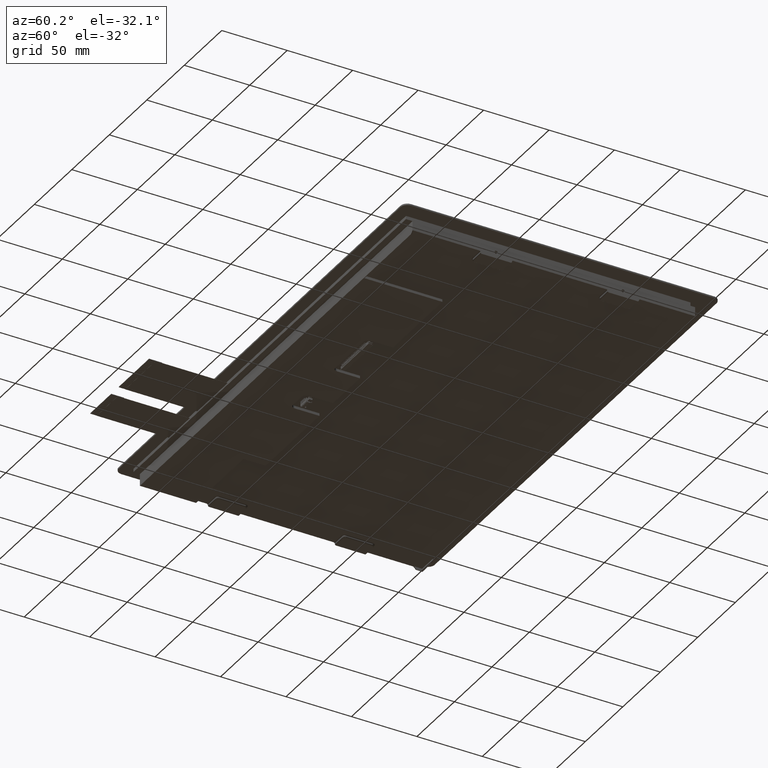
[diagram: clean part render]
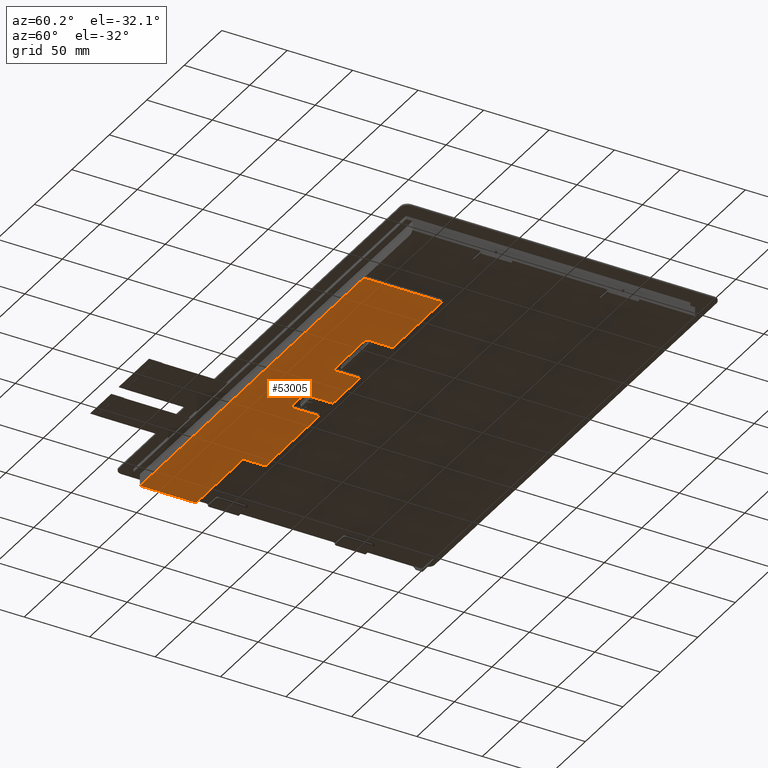
[diagram: same view with one face highlighted and labeled with its STEP entity id]
A machine part, auxiliary view. The second image highlights one B-rep face of the part: STEP entity #53005.
In plain terms, the highlighted planar face has unit normal (0, 0, -1).
Its self-contained STEP definition (entity closure, byte-faithful):
#1290=FACE_OUTER_BOUND('',#4015,.T.);
#4015=EDGE_LOOP('',(#37917,#37918,#37919,#37920,#37921,#37922,#37923,#37924,
#37925,#37926,#37927,#37928,#37929,#37930,#37931,#37932,#37933,#37934,#37935,
#37936));
#6289=CIRCLE('',#55763,3.);
#6290=CIRCLE('',#55764,3.);
#6291=CIRCLE('',#55765,3.);
#6292=CIRCLE('',#55766,3.);
#8664=LINE('',#76039,#15763);
#8756=LINE('',#76620,#15855);
#8757=LINE('',#76622,#15856);
#8758=LINE('',#76624,#15857);
#8759=LINE('',#76626,#15858);
#8760=LINE('',#76628,#15859);
#8761=LINE('',#76630,#15860);
#8762=LINE('',#76634,#15861);
#8763=LINE('',#76638,#15862);
#8764=LINE('',#76640,#15863);
#8765=LINE('',#76642,#15864);
#8766=LINE('',#76646,#15865);
#8767=LINE('',#76650,#15866);
#8768=LINE('',#76652,#15867);
#8769=LINE('',#76654,#15868);
#8770=LINE('',#76655,#15869);
#15763=VECTOR('',#61459,10.);
#15855=VECTOR('',#61665,10.);
#15856=VECTOR('',#61666,10.);
#15857=VECTOR('',#61667,10.);
#15858=VECTOR('',#61668,10.);
#15859=VECTOR('',#61669,10.);
#15860=VECTOR('',#61670,10.);
#15861=VECTOR('',#61673,10.);
#15862=VECTOR('',#61676,10.);
#15863=VECTOR('',#61677,10.);
#15864=VECTOR('',#61678,10.);
#15865=VECTOR('',#61681,10.);
#15866=VECTOR('',#61684,10.);
#15867=VECTOR('',#61685,10.);
#15868=VECTOR('',#61686,10.);
#15869=VECTOR('',#61687,10.);
#22299=VERTEX_POINT('',#76031);
#22302=VERTEX_POINT('',#76037);
#22417=VERTEX_POINT('',#76619);
#22418=VERTEX_POINT('',#76621);
#22419=VERTEX_POINT('',#76623);
#22420=VERTEX_POINT('',#76625);
#22421=VERTEX_POINT('',#76627);
#22422=VERTEX_POINT('',#76629);
#22423=VERTEX_POINT('',#76631);
#22424=VERTEX_POINT('',#76633);
#22425=VERTEX_POINT('',#76635);
#22426=VERTEX_POINT('',#76637);
#22427=VERTEX_POINT('',#76639);
#22428=VERTEX_POINT('',#76641);
#22429=VERTEX_POINT('',#76643);
#22430=VERTEX_POINT('',#76645);
#22431=VERTEX_POINT('',#76647);
#22432=VERTEX_POINT('',#76649);
#22433=VERTEX_POINT('',#76651);
#22434=VERTEX_POINT('',#76653);
#28085=EDGE_CURVE('',#22299,#22302,#8664,.T.);
#28237=EDGE_CURVE('',#22299,#22417,#8756,.T.);
#28238=EDGE_CURVE('',#22302,#22418,#8757,.T.);
#28239=EDGE_CURVE('',#22418,#22419,#8758,.T.);
#28240=EDGE_CURVE('',#22419,#22420,#8759,.T.);
#28241=EDGE_CURVE('',#22420,#22421,#8760,.T.);
#28242=EDGE_CURVE('',#22421,#22422,#8761,.T.);
#28243=EDGE_CURVE('',#22422,#22423,#6289,.T.);
#28244=EDGE_CURVE('',#22423,#22424,#8762,.T.);
#28245=EDGE_CURVE('',#22424,#22425,#6290,.T.);
#28246=EDGE_CURVE('',#22425,#22426,#8763,.T.);
#28247=EDGE_CURVE('',#22426,#22427,#8764,.T.);
#28248=EDGE_CURVE('',#22427,#22428,#8765,.T.);
#28249=EDGE_CURVE('',#22428,#22429,#6291,.T.);
#28250=EDGE_CURVE('',#22429,#22430,#8766,.T.);
#28251=EDGE_CURVE('',#22430,#22431,#6292,.T.);
#28252=EDGE_CURVE('',#22431,#22432,#8767,.T.);
#28253=EDGE_CURVE('',#22432,#22433,#8768,.T.);
#28254=EDGE_CURVE('',#22433,#22434,#8769,.T.);
#28255=EDGE_CURVE('',#22434,#22417,#8770,.T.);
#37917=ORIENTED_EDGE('',*,*,#28237,.F.);
#37918=ORIENTED_EDGE('',*,*,#28085,.T.);
#37919=ORIENTED_EDGE('',*,*,#28238,.T.);
#37920=ORIENTED_EDGE('',*,*,#28239,.T.);
#37921=ORIENTED_EDGE('',*,*,#28240,.T.);
#37922=ORIENTED_EDGE('',*,*,#28241,.T.);
#37923=ORIENTED_EDGE('',*,*,#28242,.T.);
#37924=ORIENTED_EDGE('',*,*,#28243,.T.);
#37925=ORIENTED_EDGE('',*,*,#28244,.T.);
#37926=ORIENTED_EDGE('',*,*,#28245,.T.);
#37927=ORIENTED_EDGE('',*,*,#28246,.T.);
#37928=ORIENTED_EDGE('',*,*,#28247,.T.);
#37929=ORIENTED_EDGE('',*,*,#28248,.T.);
#37930=ORIENTED_EDGE('',*,*,#28249,.T.);
#37931=ORIENTED_EDGE('',*,*,#28250,.T.);
#37932=ORIENTED_EDGE('',*,*,#28251,.T.);
#37933=ORIENTED_EDGE('',*,*,#28252,.T.);
#37934=ORIENTED_EDGE('',*,*,#28253,.T.);
#37935=ORIENTED_EDGE('',*,*,#28254,.T.);
#37936=ORIENTED_EDGE('',*,*,#28255,.T.);
#50656=PLANE('',#55762);
#53005=ADVANCED_FACE('',(#1290),#50656,.T.);
#55762=AXIS2_PLACEMENT_3D('',#76618,#61663,#61664);
#55763=AXIS2_PLACEMENT_3D('',#76632,#61671,#61672);
#55764=AXIS2_PLACEMENT_3D('',#76636,#61674,#61675);
#55765=AXIS2_PLACEMENT_3D('',#76644,#61679,#61680);
#55766=AXIS2_PLACEMENT_3D('',#76648,#61682,#61683);
#61459=DIRECTION('',(-1.,1.46483521665771E-16,0.));
#61663=DIRECTION('center_axis',(0.,0.,-1.));
#61664=DIRECTION('ref_axis',(-1.,0.,0.));
#61665=DIRECTION('',(0.,1.,0.));
#61666=DIRECTION('',(0.,1.,0.));
#61667=DIRECTION('',(1.,-1.40980701539702E-16,0.));
#61668=DIRECTION('',(0.,1.,0.));
#61669=DIRECTION('',(1.,-1.12999798944036E-16,0.));
#61670=DIRECTION('',(0.,-1.,0.));
#61671=DIRECTION('center_axis',(0.,0.,1.));
#61672=DIRECTION('ref_axis',(0.,1.,0.));
#61673=DIRECTION('',(1.,-7.40148683083438E-16,0.));
#61674=DIRECTION('center_axis',(0.,0.,1.));
#61675=DIRECTION('ref_axis',(-1.,0.,0.));
#61676=DIRECTION('',(2.27996889312799E-16,1.,0.));
#61677=DIRECTION('',(1.,-1.12999798944036E-16,0.));
#61678=DIRECTION('',(-5.63807178483887E-17,-1.,0.));
#61679=DIRECTION('center_axis',(0.,0.,1.));
#61680=DIRECTION('ref_axis',(3.70074341541718E-16,1.,0.));
#61681=DIRECTION('',(1.,2.3373116307898E-16,0.));
#61682=DIRECTION('center_axis',(0.,0.,1.));
#61683=DIRECTION('ref_axis',(-1.,0.,0.));
#61684=DIRECTION('',(0.,1.,0.));
#61685=DIRECTION('',(1.,-1.12999798944036E-16,0.));
#61686=DIRECTION('',(0.,-1.,0.));
#61687=DIRECTION('',(1.,0.,0.));
#76031=CARTESIAN_POINT('',(179.9,-107.95,-13.79));
#76037=CARTESIAN_POINT('',(-181.9,-107.95,-13.79));
#76039=CARTESIAN_POINT('',(181.9,-107.95,-13.79));
#76618=CARTESIAN_POINT('Origin',(3.5527136788005E-14,1.77635683940025E-14,
-13.79));
#76619=CARTESIAN_POINT('',(179.9,-107.45,-13.79));
#76620=CARTESIAN_POINT('',(179.9,53.975,-13.79));
#76621=CARTESIAN_POINT('',(-181.9,-64.9499999999999,-13.79));
#76622=CARTESIAN_POINT('',(-181.9,-107.95,-13.79));
#76623=CARTESIAN_POINT('',(-118.9,-64.95,-13.79));
#76624=CARTESIAN_POINT('',(-59.45,-64.95,-13.79));
#76625=CARTESIAN_POINT('',(-118.9,-47.95,-13.79));
#76626=CARTESIAN_POINT('',(-118.9,-53.975,-13.79));
#76627=CARTESIAN_POINT('',(-47.,-47.95,-13.79));
#76628=CARTESIAN_POINT('',(-59.45,-47.95,-13.79));
#76629=CARTESIAN_POINT('',(-47.,-66.95,-13.79));
#76630=CARTESIAN_POINT('',(-47.,-23.7360686665817,-13.79));
#76631=CARTESIAN_POINT('',(-44.,-69.95,-13.79));
#76632=CARTESIAN_POINT('Origin',(-44.,-66.95,-13.79));
#76633=CARTESIAN_POINT('',(-32.,-69.95,-13.79));
#76634=CARTESIAN_POINT('',(-22.,-69.95,-13.79));
#76635=CARTESIAN_POINT('',(-29.,-66.95,-13.79));
#76636=CARTESIAN_POINT('Origin',(-32.,-66.95,-13.79));
#76637=CARTESIAN_POINT('',(-29.,-47.95,-13.79));
#76638=CARTESIAN_POINT('',(-29.,-33.475,-13.79));
#76639=CARTESIAN_POINT('',(6.99999999999999,-47.95,-13.79));
#76640=CARTESIAN_POINT('',(-59.45,-47.95,-13.79));
#76641=CARTESIAN_POINT('',(7.,-65.45,-13.79));
#76642=CARTESIAN_POINT('',(7.,-22.8792312071069,-13.79));
#76643=CARTESIAN_POINT('',(10.,-68.45,-13.79));
#76644=CARTESIAN_POINT('Origin',(10.,-65.45,-13.79));
#76645=CARTESIAN_POINT('',(48.,-68.45,-13.79));
#76646=CARTESIAN_POINT('',(5.00000000000003,-68.45,-13.79));
#76647=CARTESIAN_POINT('',(51.,-65.45,-13.79));
#76648=CARTESIAN_POINT('Origin',(48.,-65.45,-13.79));
#76649=CARTESIAN_POINT('',(51.,-47.95,-13.79));
#76650=CARTESIAN_POINT('',(51.,-32.725,-13.79));
#76651=CARTESIAN_POINT('',(116.9,-47.95,-13.79));
#76652=CARTESIAN_POINT('',(-59.45,-47.95,-13.79));
#76653=CARTESIAN_POINT('',(116.9,-107.45,-13.79));
#76654=CARTESIAN_POINT('',(116.9,-23.975,-13.79));
#76655=CARTESIAN_POINT('',(90.9500000000001,-107.45,-13.79));